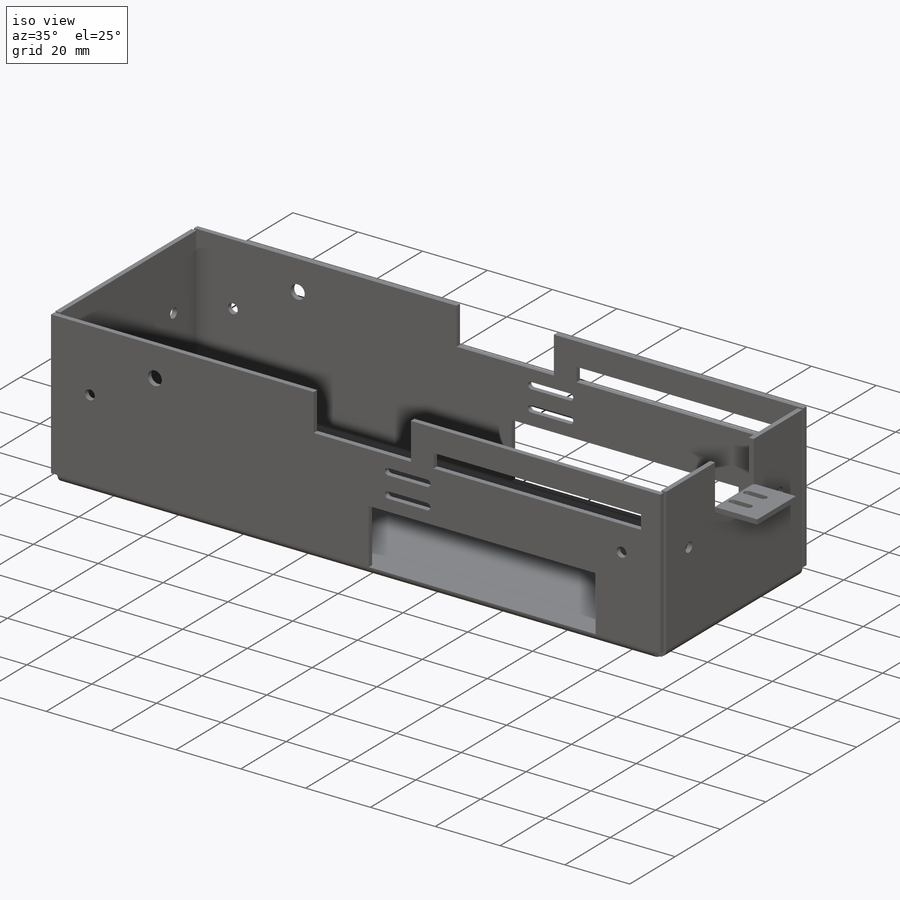
[diagram: iso view]
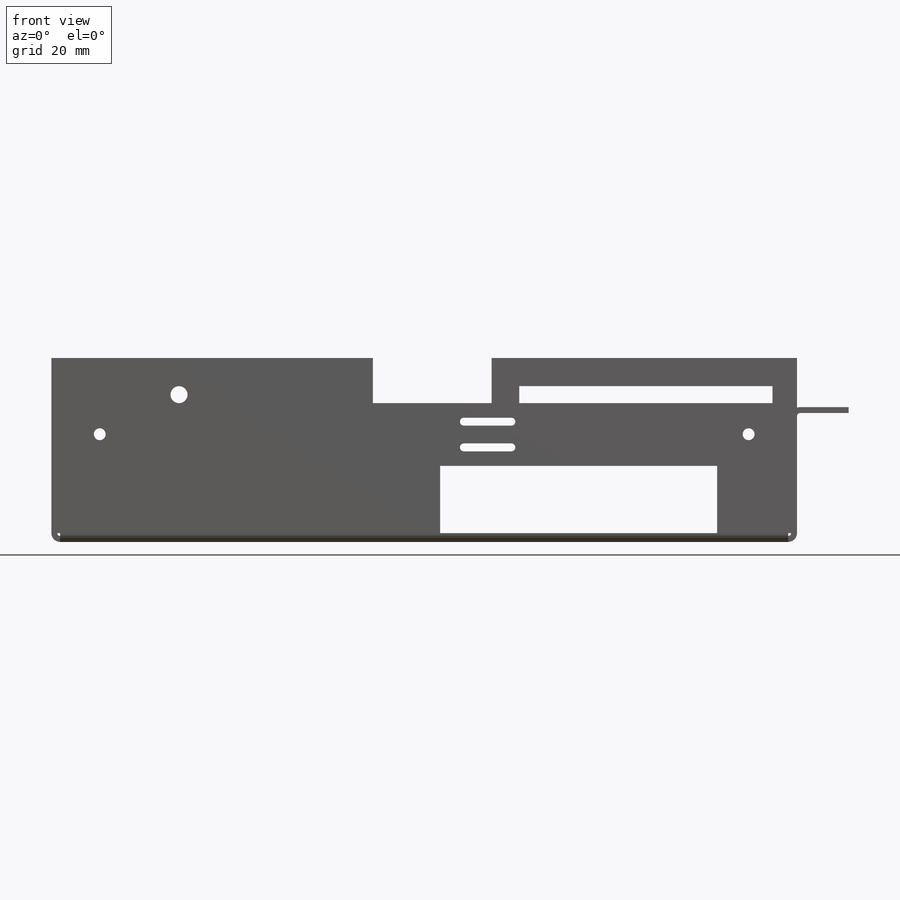
[diagram: front view]
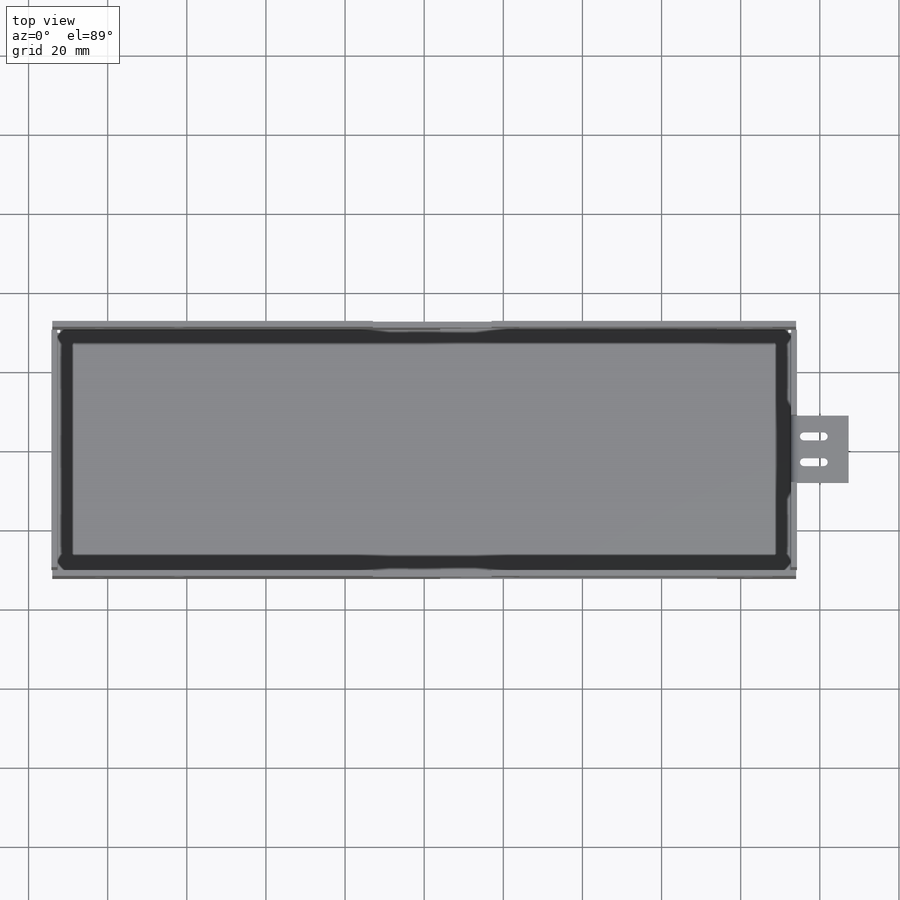
[diagram: top view]
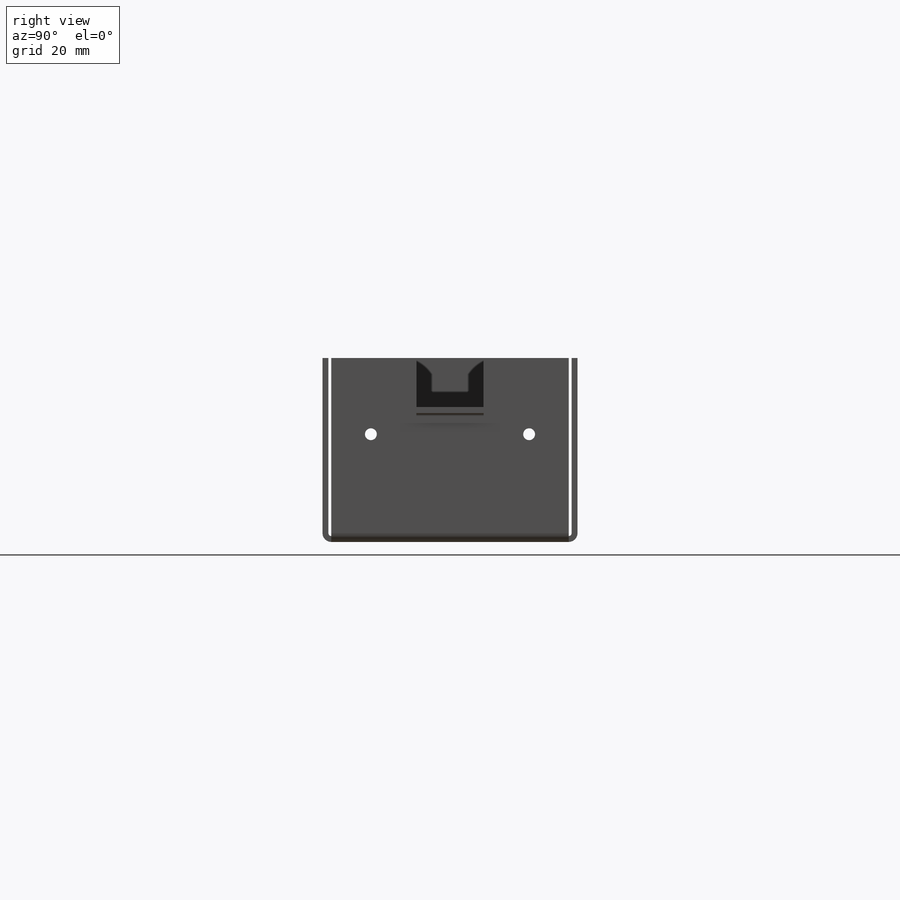
[diagram: right view]
SOLIDWORKS PART (.sldprt)
format: sldprt  version: not decoded by parser v0  size: 645,120 bytes
history: native  units: mm
features: sketch x23, cut_extrude x13, sheet_metal_op x6, extrude x2, material x1 + 5 further entries (+11 scaffold rows collapsed; 1 parser-record rows omitted)
feature tree (62):
  scaffold x11  (default folders/planes/origin — collapsed)
  material  "Material <not specified>"
  sketch  "Sketch1"  dims[c1.D1=~5.852593mm c1.D2=~66.050692mm c2.D1=~64.378522mm c2.D2=~68.558946mm c3.D1=184.0mm c3.D2=60.0mm]
  sheet_metal_op  "Sheet-Metal1"
  sheet_metal_op  "Base-Flange1"
  sketch  "Sketch8"
  sketch  "Sketch9"  dims[D1=0.7366mm D4=90.0deg D5=1.0 D8=0.75mm D9=0.75mm]
  sheet_metal_op  "EdgeBend2"  Edge-Flange2=0
  sketch  "Sketch14"
  sketch  "Sketch15"
  sheet_metal_op  "EdgeBend3"
  sheet_metal_op  "EdgeBend4"
  sketch  "Sketch16"  dims[c1.D1=44.2634mm c1.D2=1.5mm c2.D1=44.2634mm c2.D2=1.5mm]
  extrude  "Boss-Extrude1"  Depth=2mm
  sketch  "Sketch23"  dims[c1.D1=44.2634mm c1.D2=1.5mm c2.D1=44.2634mm c2.D2=2.2366mm]
  extrude  "Boss-Extrude2"  Depth=2mm
  sketch  "Sketch32"  dims[c1.D1=4.3mm c1.D6=4.3mm c1.D2=35.0mm c1.D3=~6.533803mm c1.D4=~102.355063mm c2.D3=150.0mm c2.D4=64.0mm c2.D5=35.0mm c2.D6=4.3mm c2.D7=25.0mm c3.D5=35.0mm c3.D2=32.0366mm]
  cut_extrude  "Cut-Extrude3"  [1 undecoded]
  sketch  "Sketch44"  dims[c1.D1=17.0mm c1.D2=70.0mm c1.D3=20.0mm c2.D3=90.0deg c3.D3=0.0mm c3.D4=20.0mm]
  cut_extrude  "Cut-Extrude12"  [1 undecoded]
  sketch  "Sketch46"  dims[c1.D1=3.0mm c1.D2=3.0mm c1.D3=3.0mm c2.D2=10.0mm c2.D3=25.0mm]
  cut_extrude  "Cut-Extrude13"  [1 undecoded]
  sketch  "Sketch47"  dims[c1.D1=3.0mm c1.D2=3.0mm c1.D3=3.0mm c2.D2=12.0mm c2.D3=25.0mm]
  cut_extrude  "Cut-Extrude14"  [1 undecoded]
  sketch  "Sketch50"  dims[D1=7.0mm D2=30.0mm]
  cut_extrude  "Cut-Extrude18"  [1 undecoded]
  sketch  "Sketch51"  dims[D1=17.0mm D2=14.65mm]
  cut_extrude  "Cut-Extrude19"  Depth=10mm Edge-Flange3=0
  sketch  "Sketch54"
  sheet_metal_op  "EdgeBend5"
  sketch  "Sketch55"  dims[D1=2.0mm D2=3.25mm D3=1.0mm D4=5.0mm]
  cut_extrude  "Cut-Extrude20"  Depth=1.5mm
  sketch  "Sketch56"  dims[D1=1.0mm D2=12.0mm D3=3.25mm D4=2.0mm]
  cut_extrude  "Cut-Extrude21"  [1 undecoded]
  "Flat-Pattern1"
  sketch  "Bend-Lines1"
  sketch  "Bounding-Box1"
  "Flatten-<EdgeBend2>1"
  "Flatten-<EdgeBend3>1"
  "Flatten-<EdgeBend4>1"
  "Flatten-<EdgeBend5>1"
  parser-record x1  (decoder bookkeeping rows leaked as tree rows — omitted from the tree; the rows remain in map.json)
  sketch  "Sketch35"  dims[c1.D1=~18.742465mm c1.D2=~5.152218mm c1.D4=3.0mm c1.D5=3.0mm c1.D6=~16.121899mm c1.D10=3.0mm c1.D11=3.0mm c2.D1=3.0mm c2.D2=3.0mm c2.D3=3.0mm c2.D4=3.0mm c2.D5=3.0mm c3.D1=3.0mm c3.D2=3.0mm c3.D3=3.0mm c3.D4=3.0mm c3.D5=3.0mm c3.D6=3.0mm c4.D1=21.179mm c4.D2=13.75mm c4.D3=13.75mm c4.D6=67.5mm c4.D7=~68.28213mm c5.D6=67.5mm c5.D7=5.0mm c5.D8=67.5mm c5.D9=5.0mm c5.D2=15.321mm c5.D3=~16.346573mm c5.D1=27.5mm c6.D3=67.5mm c6.D4=5.0mm c6.D5=5.0mm c6.D1=67.5mm c6.D2=5.0mm c7.D3=27.5mm c7.D4=67.5mm c7.D5=5.0mm c7.D6=8.0mm]
  cut_extrude  "Cut-Extrude5"  [1 undecoded]
  sketch  "Sketch48"  dims[c1.D1=10.0mm c1.D2=15.0mm c1.D3=~1.167573mm c1.D4=1.17mm c1.D5=20.0mm c1.D6=20.0mm c2.D5=15.0mm c2.D6=15.0mm c2.D7=15.0mm c2.D8=15.0mm c2.D2=12.0mm]
  cut_extrude  "Cut-Extrude15"  Depth=10mm
  sketch  "Sketch49"  dims[c1.D1=10.0mm c1.D2=25.0mm c1.D3=10.0mm c2.D1=~2.47988mm c2.D2=2.48mm c2.D4=50.0mm c2.D5=0.0mm c3.D4=0.0mm c3.D6=0.0mm]
  cut_extrude  "Cut-Extrude16"  Depth=10mm
  sketch  "Sketch62"  dims[D1=1.5mm D2=1.5mm]
  cut_extrude  "Cut-Extrude27"  Depth=1.5mm
  sketch  "Sketch63"  dims[D1=2.5mm D2=2.5mm]
  cut_extrude  "Cut-Extrude28"  Depth=1.5mm
decode coverage: 26 of 44 modeling features carry decoded parameters; 5 rows unclassified (native names shown)
note: ~ marks probable driven/reference dimensions
note: 7 parameter values undecoded
summary: no parameter record found for 7 features
note: suppression state not decoded; provenance and decode notes live in map.json
